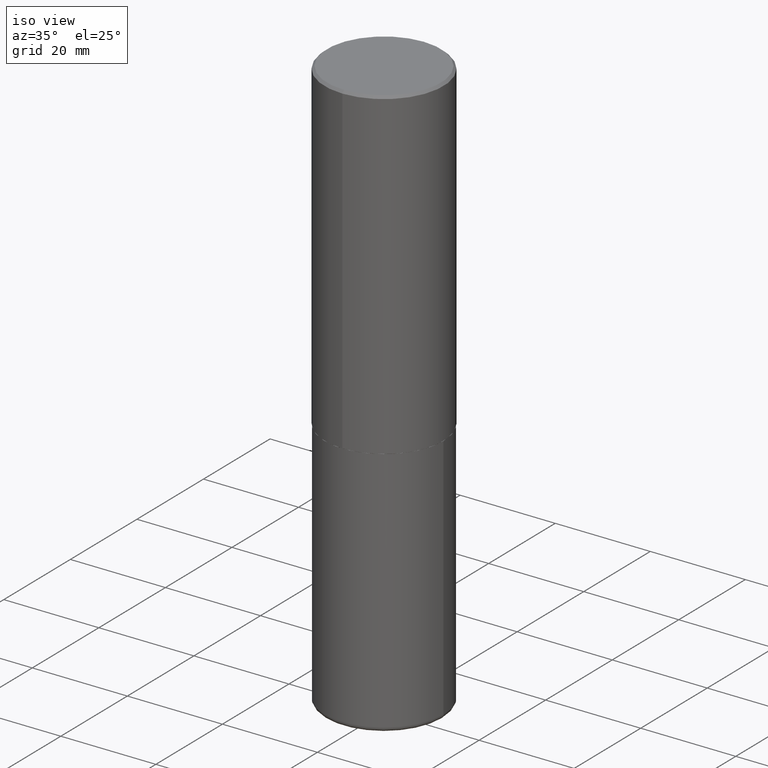
[diagram: clean part render]
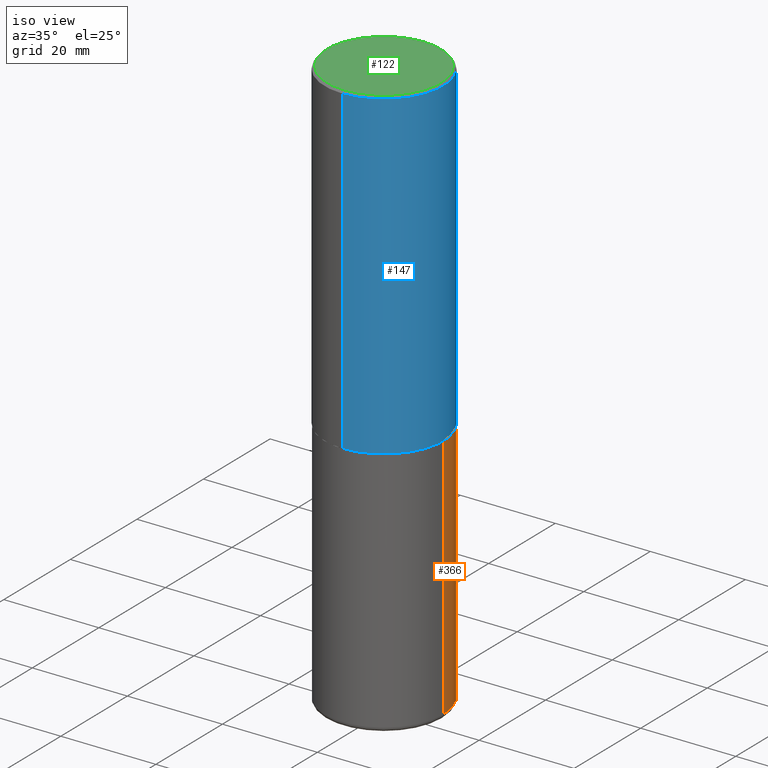
[diagram: same view with three faces highlighted in distinct colors, each labeled with its STEP entity id]
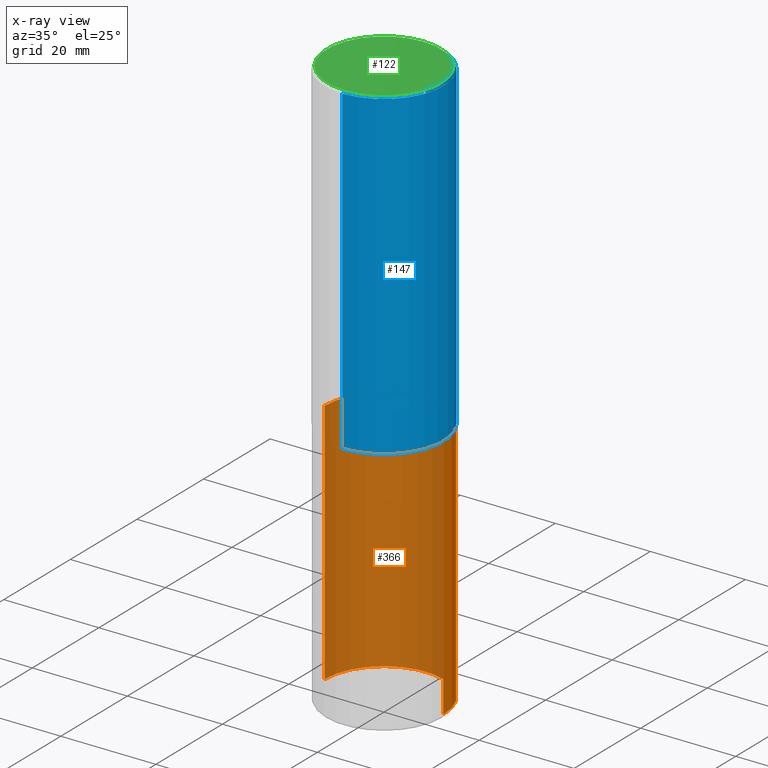
[diagram: x-ray of the same camera — body ghosted, the three highlighted faces saturated]
A machine part, iso view with three faces highlighted in distinct colors.
The next image is the same camera in x-ray (body ghosted, the three faces saturated) — at least one of them is partly hidden behind the body in this view.
Their STEP definitions:

[orange] entity #366 — the highlighted cylindrical surface (partial cylindrical patch) has radius 12.5006 mm, axis along (-0, 0, 1).
#6 = CARTESIAN_POINT ( 'NONE',  ( -0.4921499999999999764, 3.496936074043332897E-15, -2.420853904668951509E-29 ) ) ;
#10 = EDGE_CURVE ( 'NONE', #404, #379, #273, .T. ) ;
#12 = FACE_OUTER_BOUND ( 'NONE', #233, .T. ) ;
#13 = AXIS2_PLACEMENT_3D ( 'NONE', #264, #319, #294 ) ;
#15 = CARTESIAN_POINT ( 'NONE',  ( -0.4921500000000000874, -1.299821836318722241E-14, -4.724399999999999267 ) ) ;
#75 = DIRECTION ( 'NONE',  ( 1.000000000000000000, -6.982962677686261977E-15, 0.000000000000000000 ) ) ;
#76 = DIRECTION ( 'NONE',  ( 1.000000000000000000, -6.982962677686265922E-15, 4.876176775795935793E-29 ) ) ;
#77 = EDGE_CURVE ( 'NONE', #164, #404, #324, .T. ) ;
#79 = ORIENTED_EDGE ( 'NONE', *, *, #290, .T. ) ;
#101 = LINE ( 'NONE', #6, #275 ) ;
#111 = CIRCLE ( 'NONE', #159, 0.4921499999999999764 ) ;
#128 = ORIENTED_EDGE ( 'NONE', *, *, #77, .F. ) ;
#139 = DIRECTION ( 'NONE',  ( -2.445468806185136597E-29, 3.491481338843145583E-15, 1.000000000000000000 ) ) ;
#151 = AXIS2_PLACEMENT_3D ( 'NONE', #339, #139, #76 ) ;
#159 = AXIS2_PLACEMENT_3D ( 'NONE', #310, #336, #75 ) ;
#164 = VERTEX_POINT ( 'NONE', #329 ) ;
#177 = CARTESIAN_POINT ( 'NONE',  ( -0.4921499999999999764, -9.424338064747378311E-15, -2.677199999999999580 ) ) ;
#190 = CARTESIAN_POINT ( 'NONE',  ( 0.4921499999999999764, -1.278405892217416209E-14, -2.677199999999999580 ) ) ;
#233 = EDGE_LOOP ( 'NONE', ( #79, #269, #359, #128 ) ) ;
#245 = DIRECTION ( 'NONE',  ( -2.445468806185136877E-29, 3.491481338843145188E-15, 1.000000000000000000 ) ) ;
#264 = CARTESIAN_POINT ( 'NONE',  ( 6.547009087918846705E-29, -9.347393840350866318E-15, -2.677199999999999580 ) ) ;
#265 = CARTESIAN_POINT ( 'NONE',  ( 0.4921499999999999764, -3.436665081823295777E-15, 2.399810400207969603E-29 ) ) ;
#266 = VERTEX_POINT ( 'NONE', #15 ) ;
#269 = ORIENTED_EDGE ( 'NONE', *, *, #353, .T. ) ;
#273 = CIRCLE ( 'NONE', #13, 0.4921499999999999764 ) ;
#275 = VECTOR ( 'NONE', #245, 39.37007874015748143 ) ;
#290 = EDGE_CURVE ( 'NONE', #164, #266, #111, .T. ) ;
#294 = DIRECTION ( 'NONE',  ( 1.000000000000000000, -6.982962677686265922E-15, 0.000000000000000000 ) ) ;
#302 = VECTOR ( 'NONE', #381, 39.37007874015748143 ) ;
#307 = CYLINDRICAL_SURFACE ( 'NONE', #151, 0.4921499999999999764 ) ;
#310 = CARTESIAN_POINT ( 'NONE',  ( 1.155337282794105951E-28, -1.649515443723055610E-14, -4.724399999999999267 ) ) ;
#319 = DIRECTION ( 'NONE',  ( -2.445468806185136597E-29, 3.491481338843145583E-15, 1.000000000000000000 ) ) ;
#324 = LINE ( 'NONE', #265, #302 ) ;
#329 = CARTESIAN_POINT ( 'NONE',  ( 0.4921500000000000874, -1.993181951905385030E-14, -4.724399999999999267 ) ) ;
#336 = DIRECTION ( 'NONE',  ( -2.445468806185136597E-29, 3.491481338843145583E-15, 1.000000000000000000 ) ) ;
#339 = CARTESIAN_POINT ( 'NONE',  ( 0.000000000000000000, 0.000000000000000000, 0.000000000000000000 ) ) ;
#353 = EDGE_CURVE ( 'NONE', #266, #379, #101, .T. ) ;
#359 = ORIENTED_EDGE ( 'NONE', *, *, #10, .F. ) ;
#366 = ADVANCED_FACE ( 'NONE', ( #12 ), #307, .T. ) ;
#379 = VERTEX_POINT ( 'NONE', #177 ) ;
#381 = DIRECTION ( 'NONE',  ( -2.445468806185136877E-29, 3.491481338843145188E-15, 1.000000000000000000 ) ) ;
#404 = VERTEX_POINT ( 'NONE', #190 ) ;

[blue] entity #147 — the highlighted cylindrical surface (partial cylindrical patch) has radius 12.5006 mm, axis along (-0, 0, 1).
#1 = DIRECTION ( 'NONE',  ( -6.982962677686265922E-15, -1.000000000000000000, 3.486624039460257331E-15 ) ) ;
#38 = DIRECTION ( 'NONE',  ( -2.447117958567619178E-29, 3.489119658767506053E-15, 1.000000000000000000 ) ) ;
#65 = CARTESIAN_POINT ( 'NONE',  ( -3.376394089603257868E-15, -0.4921499999999999764, -0.01999999999999839059 ) ) ;
#67 = ORIENTED_EDGE ( 'NONE', *, *, #137, .F. ) ;
#70 = CARTESIAN_POINT ( 'NONE',  ( 4.894235917135264524E-31, -6.978239317535049922E-17, -0.02000000000000010797 ) ) ;
#97 = CARTESIAN_POINT ( 'NONE',  ( 0.000000000000000000, 0.000000000000000000, 0.000000000000000000 ) ) ;
#102 = CARTESIAN_POINT ( 'NONE',  ( 3.496936074043333291E-15, 0.4921500000000000874, -1.717170240062428491E-15 ) ) ;
#103 = DIRECTION ( 'NONE',  ( -2.447117958567619178E-29, 3.489119658767506053E-15, 1.000000000000000000 ) ) ;
#105 = DIRECTION ( 'NONE',  ( -6.982962677686266711E-15, -1.000000000000000000, 3.330506545156064285E-15 ) ) ;
#118 = AXIS2_PLACEMENT_3D ( 'NONE', #97, #203, #392 ) ;
#119 = ORIENTED_EDGE ( 'NONE', *, *, #412, .F. ) ;
#121 = CARTESIAN_POINT ( 'NONE',  ( 3.436665081823295777E-15, 0.4921499999999998098, -0.02000000000000182188 ) ) ;
#135 = CARTESIAN_POINT ( 'NONE',  ( -3.436665081823232273E-15, -0.4921500000000095798, -2.676199999999997914 ) ) ;
#137 = EDGE_CURVE ( 'NONE', #189, #396, #322, .T. ) ;
#142 = VERTEX_POINT ( 'NONE', #277 ) ;
#147 = ADVANCED_FACE ( 'NONE', ( #393 ), #170, .T. ) ;
#150 = AXIS2_PLACEMENT_3D ( 'NONE', #70, #103, #1 ) ;
#170 = CYLINDRICAL_SURFACE ( 'NONE', #118, 0.4921500000000000874 ) ;
#175 = EDGE_CURVE ( 'NONE', #142, #396, #386, .T. ) ;
#182 = ORIENTED_EDGE ( 'NONE', *, *, #175, .T. ) ;
#189 = VERTEX_POINT ( 'NONE', #65 ) ;
#203 = DIRECTION ( 'NONE',  ( -2.447117958567619178E-29, 3.489119658767506053E-15, 1.000000000000000000 ) ) ;
#210 = DIRECTION ( 'NONE',  ( -2.447117958567619178E-29, 3.489119658767506053E-15, 1.000000000000000000 ) ) ;
#228 = EDGE_LOOP ( 'NONE', ( #387, #182, #67, #119 ) ) ;
#246 = CARTESIAN_POINT ( 'NONE',  ( 6.548977080718662055E-29, -9.337582030793598206E-15, -2.676199999999999690 ) ) ;
#257 = DIRECTION ( 'NONE',  ( -2.447117958567619178E-29, 3.489119658767506053E-15, 1.000000000000000000 ) ) ;
#277 = CARTESIAN_POINT ( 'NONE',  ( 3.496936074043367212E-15, 0.4921499999999909281, -2.676200000000001467 ) ) ;
#286 = CIRCLE ( 'NONE', #334, 0.4921500000000002539 ) ;
#318 = VERTEX_POINT ( 'NONE', #135 ) ;
#322 = CIRCLE ( 'NONE', #150, 0.4921499999999999209 ) ;
#327 = VECTOR ( 'NONE', #38, 39.37007874015748143 ) ;
#330 = EDGE_CURVE ( 'NONE', #318, #142, #286, .T. ) ;
#334 = AXIS2_PLACEMENT_3D ( 'NONE', #246, #210, #105 ) ;
#370 = LINE ( 'NONE', #402, #408 ) ;
#386 = LINE ( 'NONE', #102, #327 ) ;
#387 = ORIENTED_EDGE ( 'NONE', *, *, #330, .T. ) ;
#392 = DIRECTION ( 'NONE',  ( -6.982962677686265922E-15, -1.000000000000000000, 3.489119658767506053E-15 ) ) ;
#393 = FACE_OUTER_BOUND ( 'NONE', #228, .T. ) ;
#396 = VERTEX_POINT ( 'NONE', #121 ) ;
#402 = CARTESIAN_POINT ( 'NONE',  ( -3.436665081823296565E-15, -0.4921500000000000874, 1.717170240062428491E-15 ) ) ;
#408 = VECTOR ( 'NONE', #257, 39.37007874015748143 ) ;
#412 = EDGE_CURVE ( 'NONE', #318, #189, #370, .T. ) ;

[green] entity #122 — the highlighted planar face has unit normal (0, -0, -1).
#5 = AXIS2_PLACEMENT_3D ( 'NONE', #414, #125, #126 ) ;
#16 = ORIENTED_EDGE ( 'NONE', *, *, #57, .T. ) ;
#30 = VERTEX_POINT ( 'NONE', #165 ) ;
#57 = EDGE_CURVE ( 'NONE', #30, #320, #66, .T. ) ;
#66 = CIRCLE ( 'NONE', #5, 0.4721499999999996255 ) ;
#74 = DIRECTION ( 'NONE',  ( 2.447117958567618897E-29, -3.489119658767506053E-15, -1.000000000000000000 ) ) ;
#80 = AXIS2_PLACEMENT_3D ( 'NONE', #362, #283, #176 ) ;
#120 = EDGE_LOOP ( 'NONE', ( #325, #16 ) ) ;
#122 = ADVANCED_FACE ( 'NONE', ( #172 ), #331, .F. ) ;
#125 = DIRECTION ( 'NONE',  ( -2.447117958567619178E-29, 3.489119658767506053E-15, 1.000000000000000000 ) ) ;
#126 = DIRECTION ( 'NONE',  ( -6.982962677686265922E-15, -1.000000000000000000, 3.489119658767506053E-15 ) ) ;
#133 = CARTESIAN_POINT ( 'NONE',  ( 3.297005828269567997E-15, 0.4721499999999996255, -1.534829799523272196E-15 ) ) ;
#165 = CARTESIAN_POINT ( 'NONE',  ( -3.307789109625541747E-15, -0.4721499999999996255, 1.872503941614685503E-15 ) ) ;
#171 = CARTESIAN_POINT ( 'NONE',  ( 3.366835455046432084E-15, 0.4721499999999996255, -1.422271752159468089E-15 ) ) ;
#172 = FACE_OUTER_BOUND ( 'NONE', #120, .T. ) ;
#176 = DIRECTION ( 'NONE',  ( -6.982962677686265922E-15, -1.000000000000000000, 3.489119658767506053E-15 ) ) ;
#178 = CIRCLE ( 'NONE', #80, 0.4721499999999996255 ) ;
#249 = AXIS2_PLACEMENT_3D ( 'NONE', #133, #74, #298 ) ;
#283 = DIRECTION ( 'NONE',  ( -2.447117958567619178E-29, 3.489119658767506053E-15, 1.000000000000000000 ) ) ;
#298 = DIRECTION ( 'NONE',  ( 6.982962677686265922E-15, 1.000000000000000000, -3.489119658767506053E-15 ) ) ;
#320 = VERTEX_POINT ( 'NONE', #171 ) ;
#325 = ORIENTED_EDGE ( 'NONE', *, *, #356, .T. ) ;
#331 = PLANE ( 'NONE',  #249 ) ;
#356 = EDGE_CURVE ( 'NONE', #320, #30, #178, .T. ) ;
#362 = CARTESIAN_POINT ( 'NONE',  ( -5.508856381705404921E-45, 7.854569916190676353E-31, 2.251160947276086573E-16 ) ) ;
#414 = CARTESIAN_POINT ( 'NONE',  ( -5.508856381705404921E-45, 7.854569916190676353E-31, 2.251160947276086573E-16 ) ) ;